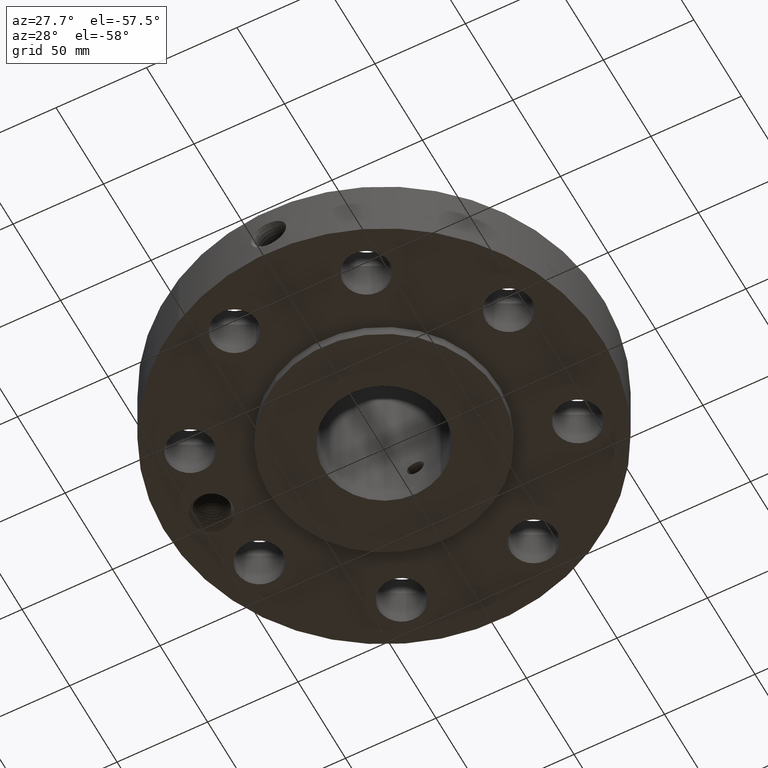
[diagram: clean part render]
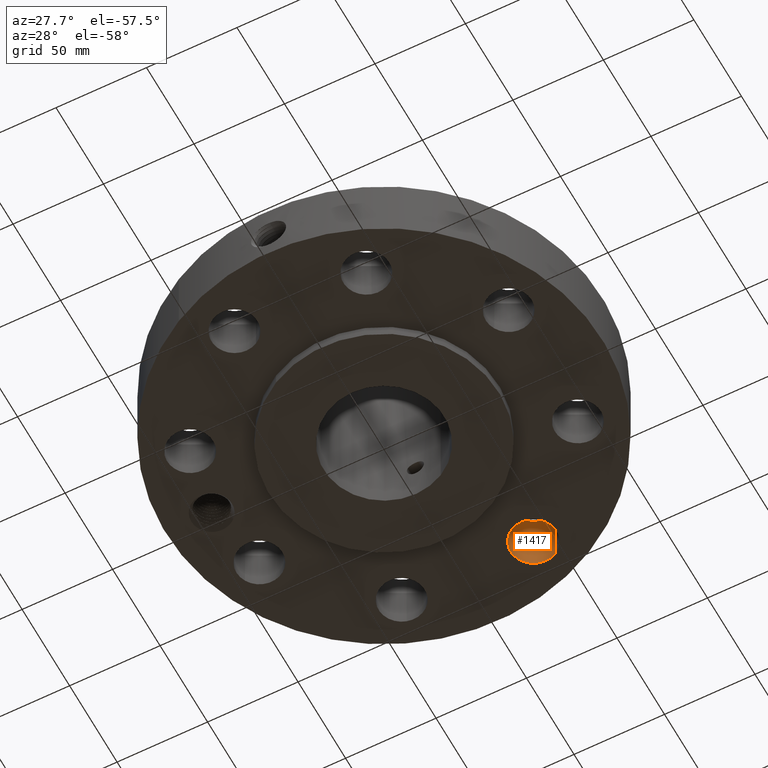
[diagram: same view with one face highlighted and labeled with its STEP entity id]
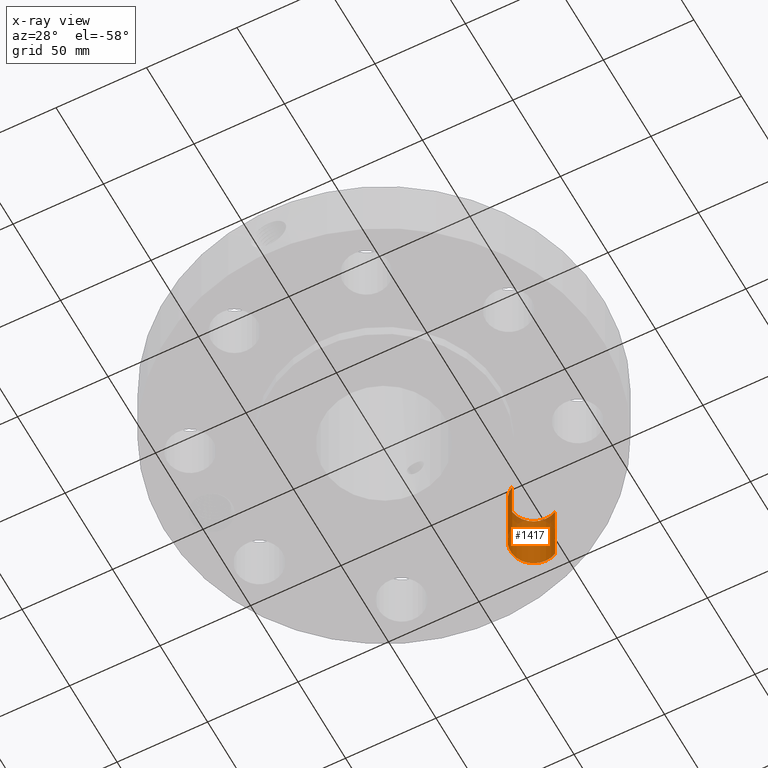
[diagram: x-ray of the same camera — body ghosted, the highlighted face saturated]
A machine part, auxiliary view. The second image highlights one B-rep face of the part: STEP entity #1417.
The next image is the same camera in x-ray: the body ghosted, the highlighted face saturated — about 8% of this face is hidden behind the body in this view.
In plain terms, the highlighted cylindrical surface (edge-blend (fillet) strip) has radius 12.7 mm, axis along (0, 0, -1).
Its self-contained STEP definition (entity closure, byte-faithful):
#338=AXIS2_PLACEMENT_3D('Circle Axis2P3D',#336,#337,$) ;
#652=AXIS2_PLACEMENT_3D('Circle Axis2P3D',#650,#651,$) ;
#1399=AXIS2_PLACEMENT_3D('Cylinder Axis2P3D',#1396,#1397,#1398) ;
#336=CARTESIAN_POINT('Axis2P3D Location',(1.43506287137,3.46454824693,0.250000000001)) ;
#340=CARTESIAN_POINT('Vertex',(1.19535010207,3.02575696598,0.250000000001)) ;
#342=CARTESIAN_POINT('Vertex',(1.67477564068,3.90333952788,0.250000000001)) ;
#645=CARTESIAN_POINT('Vertex',(1.67477564068,3.90333952788,1.75000000001)) ;
#647=CARTESIAN_POINT('Vertex',(1.19535010207,3.02575696598,1.75000000001)) ;
#650=CARTESIAN_POINT('Axis2P3D Location',(1.43506287137,3.46454824693,1.75000000001)) ;
#1396=CARTESIAN_POINT('Axis2P3D Location',(1.43506287137,3.46454824693,1.74606299213)) ;
#1401=CARTESIAN_POINT('Line Origine',(1.19535010207,3.02575696598,1.)) ;
#1406=CARTESIAN_POINT('Line Origine',(1.67477564068,3.90333952788,1.)) ;
#337=DIRECTION('Axis2P3D Direction',(0.,0.,-0.0393700787402)) ;
#651=DIRECTION('Axis2P3D Direction',(0.,0.,-0.0393700787402)) ;
#1397=DIRECTION('Axis2P3D Direction',(0.,0.,-0.0393700787402)) ;
#1398=DIRECTION('Axis2P3D XDirection',(0.0188750212049,0.0345504945626,0.)) ;
#1402=DIRECTION('Vector Direction',(0.,0.,-0.0393700787402)) ;
#1407=DIRECTION('Vector Direction',(0.,0.,-0.0393700787402)) ;
#1403=VECTOR('Line Direction',#1402,0.0393700787402) ;
#1408=VECTOR('Line Direction',#1407,0.0393700787402) ;
#1412=ORIENTED_EDGE('',*,*,#1405,.F.) ;
#1413=ORIENTED_EDGE('',*,*,#344,.T.) ;
#1414=ORIENTED_EDGE('',*,*,#1410,.T.) ;
#1415=ORIENTED_EDGE('',*,*,#654,.F.) ;
#1417=ADVANCED_FACE('PartBody',(#1416),#1400,.F.) ;
#339=CIRCLE('generated circle',#338,0.500000000002) ;
#653=CIRCLE('generated circle',#652,0.500000000002) ;
#1400=CYLINDRICAL_SURFACE('generated cylinder',#1399,0.500000000002) ;
#344=EDGE_CURVE('',#341,#343,#339,.T.) ;
#654=EDGE_CURVE('',#648,#646,#653,.T.) ;
#1405=EDGE_CURVE('',#341,#648,#1404,.F.) ;
#1410=EDGE_CURVE('',#343,#646,#1409,.F.) ;
#1411=EDGE_LOOP('',(#1412,#1413,#1414,#1415)) ;
#1416=FACE_OUTER_BOUND('',#1411,.T.) ;
#1404=LINE('Line',#1401,#1403) ;
#1409=LINE('Line',#1406,#1408) ;
#341=VERTEX_POINT('',#340) ;
#343=VERTEX_POINT('',#342) ;
#646=VERTEX_POINT('',#645) ;
#648=VERTEX_POINT('',#647) ;